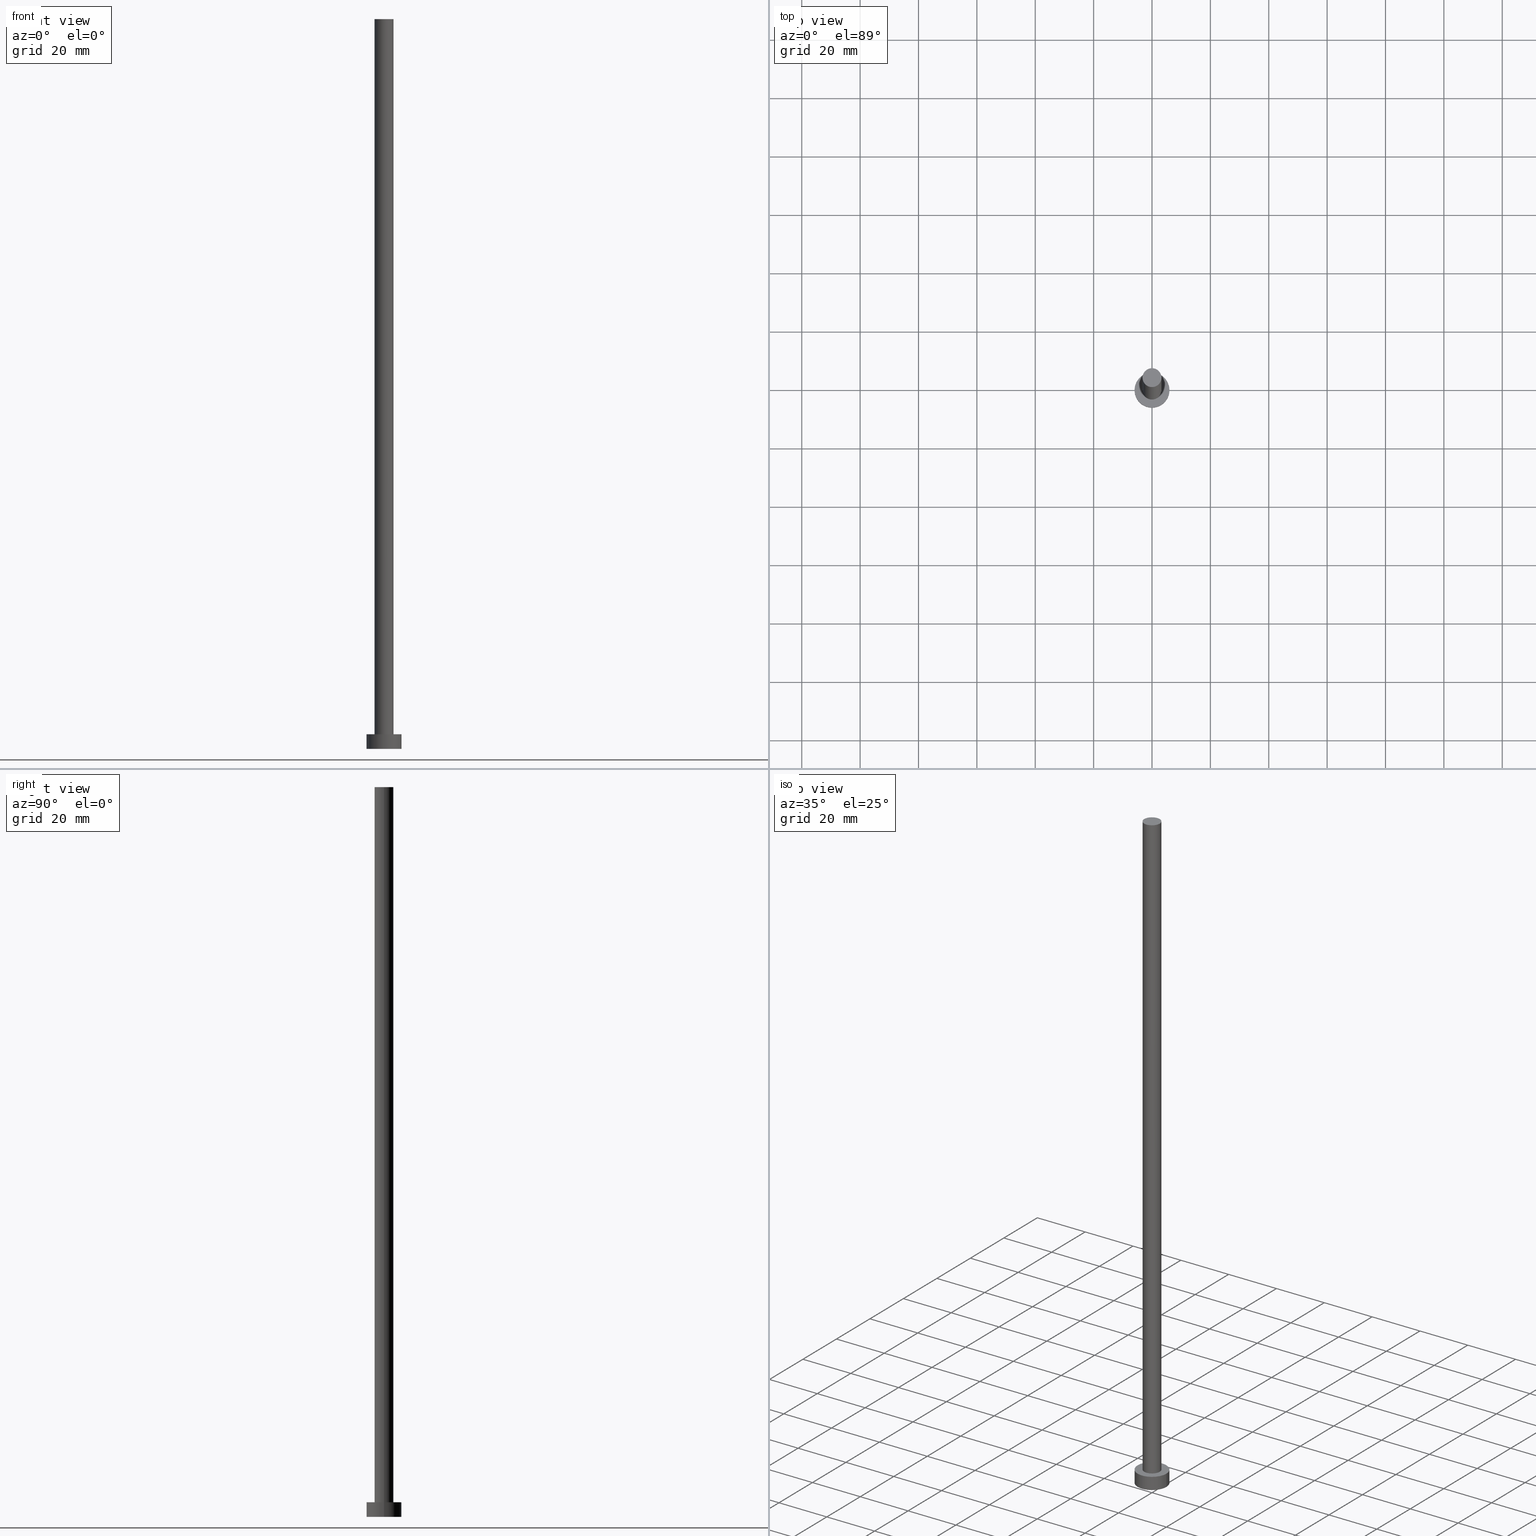
[diagram: canonical four-view strip — front | top / right | iso, engineering-drawing reading convention]
A machine part, canonical four-view strip (front | top / right | iso — engineering-drawing reading convention). The complete STEP part file that produces these views, byte-faithful:
ISO-10303-21;
HEADER;
FILE_DESCRIPTION (( 'STEP AP203' ),
    '1' );
FILE_NAME ('f6a0.STEP',
    '2023-02-12T12:07:57',
    ( '' ),
    ( '' ),
    'SwSTEP 2.0',
    'SolidWorks 2019',
    '' );
FILE_SCHEMA (( 'CONFIG_CONTROL_DESIGN' ));
ENDSEC;

DATA;
#1 = COORDINATED_UNIVERSAL_TIME_OFFSET ( 1, 0, .AHEAD. ) ;
#2 = CIRCLE ( 'NONE', #26, 3.250000000000000444 ) ;
#3 = PERSON_AND_ORGANIZATION ( #60, #21 ) ;
#4 = ORIENTED_EDGE ( 'NONE', *, *, #225, .F. ) ;
#5 = CARTESIAN_POINT ( 'NONE',  ( -6.000000000000000888, 0.000000000000000000, 0.000000000000000000 ) ) ;
#6 = ADVANCED_FACE ( 'NONE', ( #52, #169 ), #186, .T. ) ;
#7 = DIRECTION ( 'NONE',  ( 0.000000000000000000, 0.000000000000000000, 1.000000000000000000 ) ) ;
#8 = LINE ( 'NONE', #184, #203 ) ;
#9 = UNCERTAINTY_MEASURE_WITH_UNIT (LENGTH_MEASURE( 1.000000000000000082E-05 ), #51, 'distance_accuracy_value', 'NONE');
#10 = ORIENTED_EDGE ( 'NONE', *, *, #19, .T. ) ;
#11 = EDGE_CURVE ( 'NONE', #14, #111, #13, .T. ) ;
#12 = EDGE_LOOP ( 'NONE', ( #35, #159 ) ) ;
#13 = CIRCLE ( 'NONE', #81, 3.250000000000000444 ) ;
#14 = VERTEX_POINT ( 'NONE', #55 ) ;
#15 = DIRECTION ( 'NONE',  ( 1.000000000000000000, 0.000000000000000000, 0.000000000000000000 ) ) ;
#16 = CARTESIAN_POINT ( 'NONE',  ( 0.000000000000000000, 0.000000000000000000, 250.0000000000000000 ) ) ;
#17 = CIRCLE ( 'NONE', #250, 6.000000000000000888 ) ;
#18 = APPROVAL_STATUS ( 'not_yet_approved' ) ;
#19 = EDGE_CURVE ( 'NONE', #149, #124, #57, .T. ) ;
#20 = CARTESIAN_POINT ( 'NONE',  ( 0.000000000000000000, 0.000000000000000000, 5.000000000000000000 ) ) ;
#21 = ORGANIZATION ( 'NEUR�EN�', 'NEUR�EN�', '' ) ;
#22 = EDGE_CURVE ( 'NONE', #14, #124, #131, .T. ) ;
#23 = PRODUCT_DEFINITION_SHAPE ( 'NONE', 'NONE',  #179 ) ;
#24 = COORDINATED_UNIVERSAL_TIME_OFFSET ( 1, 0, .AHEAD. ) ;
#25 = EDGE_LOOP ( 'NONE', ( #229, #67, #92, #220 ) ) ;
#26 = AXIS2_PLACEMENT_3D ( 'NONE', #165, #7, #48 ) ;
#27 = AXIS2_PLACEMENT_3D ( 'NONE', #148, #188, #246 ) ;
#28 = VERTEX_POINT ( 'NONE', #86 ) ;
#29 = PERSON_AND_ORGANIZATION ( #60, #21 ) ;
#30 = DIRECTION ( 'NONE',  ( 1.000000000000000000, 0.000000000000000000, -0.000000000000000000 ) ) ;
#31 = DIRECTION ( 'NONE',  ( -0.000000000000000000, -0.000000000000000000, -1.000000000000000000 ) ) ;
#32 = CARTESIAN_POINT ( 'NONE',  ( -6.000000000000000888, 0.000000000000000000, 5.000000000000000000 ) ) ;
#33 = DESIGN_CONTEXT ( 'detailed design', #125, 'design' ) ;
#34 =( NAMED_UNIT ( * ) PLANE_ANGLE_UNIT ( ) SI_UNIT ( $, .RADIAN. ) );
#35 = ORIENTED_EDGE ( 'NONE', *, *, #11, .T. ) ;
#36 = DIRECTION ( 'NONE',  ( -0.000000000000000000, -0.000000000000000000, -1.000000000000000000 ) ) ;
#37 = AXIS2_PLACEMENT_3D ( 'NONE', #20, #58, #171 ) ;
#38 = AXIS2_PLACEMENT_3D ( 'NONE', #108, #253, #202 ) ;
#39 = DIRECTION ( 'NONE',  ( 1.000000000000000000, 0.000000000000000000, 0.000000000000000000 ) ) ;
#40 = DIRECTION ( 'NONE',  ( 0.000000000000000000, 0.000000000000000000, 1.000000000000000000 ) ) ;
#41 = CARTESIAN_POINT ( 'NONE',  ( 6.000000000000000888, 7.347880794884120722E-16, 5.000000000000000000 ) ) ;
#42 = PRODUCT_RELATED_PRODUCT_CATEGORY ( 'detail', '', ( #117 ) ) ;
#43 = AXIS2_PLACEMENT_3D ( 'NONE', #91, #126, #75 ) ;
#44 = DATE_AND_TIME ( #215, #98 ) ;
#45 = LOCAL_TIME ( 13, 7, 57.00000000000000000, #99 ) ;
#46 = VERTEX_POINT ( 'NONE', #32 ) ;
#47 = APPROVAL_PERSON_ORGANIZATION ( #29, #119, #245 ) ;
#48 = DIRECTION ( 'NONE',  ( 1.000000000000000000, 0.000000000000000000, 0.000000000000000000 ) ) ;
#49 = CALENDAR_DATE ( 2023, 12, 2 ) ;
#50 = FACE_OUTER_BOUND ( 'NONE', #25, .T. ) ;
#51 =( LENGTH_UNIT ( ) NAMED_UNIT ( * ) SI_UNIT ( .MILLI., .METRE. ) );
#52 = FACE_BOUND ( 'NONE', #207, .T. ) ;
#53 = CARTESIAN_POINT ( 'NONE',  ( 0.000000000000000000, 0.000000000000000000, 5.000000000000000000 ) ) ;
#54 = ORIENTED_EDGE ( 'NONE', *, *, #161, .T. ) ;
#55 = CARTESIAN_POINT ( 'NONE',  ( -3.250000000000000444, 0.000000000000000000, 250.0000000000000000 ) ) ;
#56 = DIRECTION ( 'NONE',  ( -1.000000000000000000, 0.000000000000000000, 0.000000000000000000 ) ) ;
#57 = CIRCLE ( 'NONE', #27, 3.250000000000000444 ) ;
#58 = DIRECTION ( 'NONE',  ( -0.000000000000000000, -0.000000000000000000, -1.000000000000000000 ) ) ;
#59 = CARTESIAN_POINT ( 'NONE',  ( 0.000000000000000000, 0.000000000000000000, 5.000000000000000000 ) ) ;
#60 = PERSON ( 'NEUR�EN�', 'NEUR�EN�', 'NEUR�EN�', ('NEUR�EN�'), ('NEUR�EN�'), ('NEUR�EN�') ) ;
#61 = EDGE_CURVE ( 'NONE', #46, #120, #227, .T. ) ;
#62 = AXIS2_PLACEMENT_3D ( 'NONE', #16, #192, #15 ) ;
#63 = PERSON_AND_ORGANIZATION ( #60, #21 ) ;
#64 = PERSON_AND_ORGANIZATION ( #60, #21 ) ;
#65 = EDGE_CURVE ( 'NONE', #46, #129, #221, .T. ) ;
#66 = PERSON_AND_ORGANIZATION_ROLE ( 'creator' ) ;
#67 = ORIENTED_EDGE ( 'NONE', *, *, #11, .F. ) ;
#68 = ORIENTED_EDGE ( 'NONE', *, *, #22, .F. ) ;
#69 = MANIFOLD_SOLID_BREP ( 'P�idat vysunut�m3', #155 ) ;
#70 = PERSON_AND_ORGANIZATION_ROLE ( 'design_supplier' ) ;
#71 =( NAMED_UNIT ( * ) SI_UNIT ( $, .STERADIAN. ) SOLID_ANGLE_UNIT ( ) );
#72 = APPROVAL_PERSON_ORGANIZATION ( #63, #82, #133 ) ;
#73 = ORIENTED_EDGE ( 'NONE', *, *, #144, .F. ) ;
#74 = EDGE_LOOP ( 'NONE', ( #73, #140, #10, #68 ) ) ;
#75 = DIRECTION ( 'NONE',  ( 1.000000000000000000, 0.000000000000000000, -0.000000000000000000 ) ) ;
#76 = DIRECTION ( 'NONE',  ( -0.000000000000000000, -0.000000000000000000, -1.000000000000000000 ) ) ;
#77 = LOCAL_TIME ( 13, 7, 57.00000000000000000, #1 ) ;
#78 = EDGE_LOOP ( 'NONE', ( #107, #198 ) ) ;
#79 = DIRECTION ( 'NONE',  ( 1.000000000000000000, 0.000000000000000000, -0.000000000000000000 ) ) ;
#80 = FACE_OUTER_BOUND ( 'NONE', #74, .T. ) ;
#81 = AXIS2_PLACEMENT_3D ( 'NONE', #231, #109, #248 ) ;
#82 = APPROVAL ( #18, 'NEUR�EN�' ) ;
#83 = EDGE_LOOP ( 'NONE', ( #197, #104, #54, #168 ) ) ;
#84 = CC_DESIGN_PERSON_AND_ORGANIZATION_ASSIGNMENT ( #3, #176, ( #179 ) ) ;
#85 = DATE_AND_TIME ( #240, #77 ) ;
#86 = CARTESIAN_POINT ( 'NONE',  ( 6.000000000000000888, 7.347880794884120722E-16, 0.000000000000000000 ) ) ;
#87 = CC_DESIGN_DATE_AND_TIME_ASSIGNMENT ( #44, #195, ( #141 ) ) ;
#88 = LOCAL_TIME ( 13, 7, 57.00000000000000000, #145 ) ;
#89 = CYLINDRICAL_SURFACE ( 'NONE', #101, 3.250000000000000444 ) ;
#90 = APPLICATION_PROTOCOL_DEFINITION ( 'international standard', 'config_control_design', 1994, #125 ) ;
#91 = CARTESIAN_POINT ( 'NONE',  ( 0.000000000000000000, 0.000000000000000000, 5.000000000000000000 ) ) ;
#92 = ORIENTED_EDGE ( 'NONE', *, *, #22, .T. ) ;
#93 = FACE_OUTER_BOUND ( 'NONE', #142, .T. ) ;
#94 = PLANE ( 'NONE',  #143 ) ;
#95 = DATE_AND_TIME ( #173, #45 ) ;
#96 = AXIS2_PLACEMENT_3D ( 'NONE', #190, #115, #56 ) ;
#97 = DIRECTION ( 'NONE',  ( -0.000000000000000000, -0.000000000000000000, -1.000000000000000000 ) ) ;
#98 = LOCAL_TIME ( 13, 7, 57.00000000000000000, #138 ) ;
#99 = COORDINATED_UNIVERSAL_TIME_OFFSET ( 1, 0, .AHEAD. ) ;
#100 = APPROVAL ( #158, 'NEUR�EN�' ) ;
#101 = AXIS2_PLACEMENT_3D ( 'NONE', #153, #234, #134 ) ;
#102 = AXIS2_PLACEMENT_3D ( 'NONE', #128, #183, #123 ) ;
#103 = DATE_TIME_ROLE ( 'creation_date' ) ;
#104 = ORIENTED_EDGE ( 'NONE', *, *, #211, .T. ) ;
#105 = CIRCLE ( 'NONE', #191, 6.000000000000000888 ) ;
#106 = APPROVAL_DATE_TIME ( #201, #119 ) ;
#107 = ORIENTED_EDGE ( 'NONE', *, *, #65, .T. ) ;
#108 = CARTESIAN_POINT ( 'NONE',  ( 0.000000000000000000, 0.000000000000000000, 5.000000000000000000 ) ) ;
#109 = DIRECTION ( 'NONE',  ( 0.000000000000000000, 0.000000000000000000, 1.000000000000000000 ) ) ;
#110 = AXIS2_PLACEMENT_3D ( 'NONE', #53, #31, #226 ) ;
#111 = VERTEX_POINT ( 'NONE', #152 ) ;
#112 = DIRECTION ( 'NONE',  ( 1.000000000000000000, 0.000000000000000000, 0.000000000000000000 ) ) ;
#113 = DIRECTION ( 'NONE',  ( 0.000000000000000000, 0.000000000000000000, 1.000000000000000000 ) ) ;
#114 = ADVANCED_FACE ( 'NONE', ( #232 ), #122, .T. ) ;
#115 = DIRECTION ( 'NONE',  ( -0.000000000000000000, -0.000000000000000000, -1.000000000000000000 ) ) ;
#116 = EDGE_CURVE ( 'NONE', #111, #149, #8, .T. ) ;
#117 = PRODUCT ( 'f6a0', 'f6a0', '', ( #163 ) ) ;
#118 = CC_DESIGN_APPROVAL ( #119, ( #179 ) ) ;
#119 = APPROVAL ( #228, 'NEUR�EN�' ) ;
#120 = VERTEX_POINT ( 'NONE', #5 ) ;
#121 = CC_DESIGN_PERSON_AND_ORGANIZATION_ASSIGNMENT ( #243, #137, ( #141 ) ) ;
#122 = PLANE ( 'NONE',  #216 ) ;
#123 = DIRECTION ( 'NONE',  ( 1.000000000000000000, 0.000000000000000000, 0.000000000000000000 ) ) ;
#124 = VERTEX_POINT ( 'NONE', #162 ) ;
#125 = APPLICATION_CONTEXT ( 'configuration controlled 3d designs of mechanical parts and assemblies' ) ;
#126 = DIRECTION ( 'NONE',  ( 0.000000000000000000, 0.000000000000000000, 1.000000000000000000 ) ) ;
#127 = CC_DESIGN_APPROVAL ( #100, ( #206 ) ) ;
#128 = CARTESIAN_POINT ( 'NONE',  ( 0.000000000000000000, 0.000000000000000000, 0.000000000000000000 ) ) ;
#129 = VERTEX_POINT ( 'NONE', #224 ) ;
#130 = ADVANCED_FACE ( 'NONE', ( #50 ), #89, .T. ) ;
#131 = LINE ( 'NONE', #251, #204 ) ;
#132 = CARTESIAN_POINT ( 'NONE',  ( 3.250000000000000444, 3.980102097228898231E-16, 5.000000000000000000 ) ) ;
#133 = APPROVAL_ROLE ( '' ) ;
#134 = DIRECTION ( 'NONE',  ( -1.000000000000000000, 0.000000000000000000, 0.000000000000000000 ) ) ;
#135 = APPROVAL_PERSON_ORGANIZATION ( #178, #100, #217 ) ;
#136 = CYLINDRICAL_SURFACE ( 'NONE', #37, 6.000000000000000888 ) ;
#137 = PERSON_AND_ORGANIZATION_ROLE ( 'classification_officer' ) ;
#138 = COORDINATED_UNIVERSAL_TIME_OFFSET ( 1, 0, .AHEAD. ) ;
#139 = ADVANCED_FACE ( 'NONE', ( #80 ), #189, .T. ) ;
#140 = ORIENTED_EDGE ( 'NONE', *, *, #116, .T. ) ;
#141 = SECURITY_CLASSIFICATION ( '', '', #219 ) ;
#142 = EDGE_LOOP ( 'NONE', ( #239, #194 ) ) ;
#143 = AXIS2_PLACEMENT_3D ( 'NONE', #172, #40, #79 ) ;
#144 = EDGE_CURVE ( 'NONE', #111, #14, #167, .T. ) ;
#145 = COORDINATED_UNIVERSAL_TIME_OFFSET ( 1, 0, .AHEAD. ) ;
#146 = DIRECTION ( 'NONE',  ( 0.000000000000000000, 0.000000000000000000, 1.000000000000000000 ) ) ;
#147 = CYLINDRICAL_SURFACE ( 'NONE', #110, 6.000000000000000888 ) ;
#148 = CARTESIAN_POINT ( 'NONE',  ( 0.000000000000000000, 0.000000000000000000, 5.000000000000000000 ) ) ;
#149 = VERTEX_POINT ( 'NONE', #132 ) ;
#150 = CC_DESIGN_PERSON_AND_ORGANIZATION_ASSIGNMENT ( #241, #66, ( #206 ) ) ;
#151 = CARTESIAN_POINT ( 'NONE',  ( -6.000000000000000888, 0.000000000000000000, 5.000000000000000000 ) ) ;
#152 = CARTESIAN_POINT ( 'NONE',  ( 3.250000000000000444, 3.980102097228898231E-16, 250.0000000000000000 ) ) ;
#153 = CARTESIAN_POINT ( 'NONE',  ( 0.000000000000000000, 0.000000000000000000, 250.0000000000000000 ) ) ;
#154 = FACE_OUTER_BOUND ( 'NONE', #249, .T. ) ;
#155 = CLOSED_SHELL ( 'NONE', ( #139, #252, #196, #6, #187, #130, #114 ) ) ;
#156 = APPLICATION_CONTEXT ( 'configuration controlled 3d designs of mechanical parts and assemblies' ) ;
#157 = DATE_AND_TIME ( #238, #213 ) ;
#158 = APPROVAL_STATUS ( 'not_yet_approved' ) ;
#159 = ORIENTED_EDGE ( 'NONE', *, *, #144, .T. ) ;
#160 = ADVANCED_BREP_SHAPE_REPRESENTATION ( 'f6a0', ( #69, #102 ), #242 ) ;
#161 = EDGE_CURVE ( 'NONE', #28, #120, #175, .T. ) ;
#162 = CARTESIAN_POINT ( 'NONE',  ( -3.250000000000000444, 0.000000000000000000, 5.000000000000000000 ) ) ;
#163 = MECHANICAL_CONTEXT ( 'NONE', #156, 'mechanical' ) ;
#164 = ORIENTED_EDGE ( 'NONE', *, *, #19, .F. ) ;
#165 = CARTESIAN_POINT ( 'NONE',  ( 0.000000000000000000, 0.000000000000000000, 5.000000000000000000 ) ) ;
#166 = ORIENTED_EDGE ( 'NONE', *, *, #211, .F. ) ;
#167 = CIRCLE ( 'NONE', #62, 3.250000000000000444 ) ;
#168 = ORIENTED_EDGE ( 'NONE', *, *, #61, .F. ) ;
#169 = FACE_OUTER_BOUND ( 'NONE', #78, .T. ) ;
#170 = CC_DESIGN_PERSON_AND_ORGANIZATION_ASSIGNMENT ( #64, #70, ( #206 ) ) ;
#171 = DIRECTION ( 'NONE',  ( -1.000000000000000000, 0.000000000000000000, 0.000000000000000000 ) ) ;
#172 = CARTESIAN_POINT ( 'NONE',  ( 0.000000000000000000, 0.000000000000000000, 0.000000000000000000 ) ) ;
#173 = CALENDAR_DATE ( 2023, 12, 2 ) ;
#174 = SHAPE_DEFINITION_REPRESENTATION ( #23, #160 ) ;
#175 = CIRCLE ( 'NONE', #244, 6.000000000000000888 ) ;
#176 = PERSON_AND_ORGANIZATION_ROLE ( 'creator' ) ;
#177 = EDGE_CURVE ( 'NONE', #129, #46, #105, .T. ) ;
#178 = PERSON_AND_ORGANIZATION ( #60, #21 ) ;
#179 = PRODUCT_DEFINITION ( 'NEZN�M�', '', #206, #33 ) ;
#180 = DIRECTION ( 'NONE',  ( -0.000000000000000000, -0.000000000000000000, -1.000000000000000000 ) ) ;
#181 = PERSON_AND_ORGANIZATION ( #60, #21 ) ;
#182 = CARTESIAN_POINT ( 'NONE',  ( 0.000000000000000000, 0.000000000000000000, 250.0000000000000000 ) ) ;
#183 = DIRECTION ( 'NONE',  ( 0.000000000000000000, 0.000000000000000000, 1.000000000000000000 ) ) ;
#184 = CARTESIAN_POINT ( 'NONE',  ( 3.250000000000000444, 3.980102097228898231E-16, 250.0000000000000000 ) ) ;
#185 = FACE_OUTER_BOUND ( 'NONE', #83, .T. ) ;
#186 = PLANE ( 'NONE',  #43 ) ;
#187 = ADVANCED_FACE ( 'NONE', ( #93 ), #94, .F. ) ;
#188 = DIRECTION ( 'NONE',  ( 0.000000000000000000, 0.000000000000000000, 1.000000000000000000 ) ) ;
#189 = CYLINDRICAL_SURFACE ( 'NONE', #96, 3.250000000000000444 ) ;
#190 = CARTESIAN_POINT ( 'NONE',  ( 0.000000000000000000, 0.000000000000000000, 250.0000000000000000 ) ) ;
#191 = AXIS2_PLACEMENT_3D ( 'NONE', #59, #233, #39 ) ;
#192 = DIRECTION ( 'NONE',  ( 0.000000000000000000, 0.000000000000000000, 1.000000000000000000 ) ) ;
#193 = CC_DESIGN_PERSON_AND_ORGANIZATION_ASSIGNMENT ( #181, #247, ( #117 ) ) ;
#194 = ORIENTED_EDGE ( 'NONE', *, *, #161, .F. ) ;
#195 = DATE_TIME_ROLE ( 'classification_date' ) ;
#196 = ADVANCED_FACE ( 'NONE', ( #154 ), #136, .T. ) ;
#197 = ORIENTED_EDGE ( 'NONE', *, *, #177, .F. ) ;
#198 = ORIENTED_EDGE ( 'NONE', *, *, #177, .T. ) ;
#199 = CC_DESIGN_SECURITY_CLASSIFICATION ( #141, ( #206 ) ) ;
#200 = ORIENTED_EDGE ( 'NONE', *, *, #65, .F. ) ;
#201 = DATE_AND_TIME ( #49, #88 ) ;
#202 = DIRECTION ( 'NONE',  ( 1.000000000000000000, 0.000000000000000000, 0.000000000000000000 ) ) ;
#203 = VECTOR ( 'NONE', #180, 1000.000000000000000 ) ;
#204 = VECTOR ( 'NONE', #76, 1000.000000000000000 ) ;
#205 = ORIENTED_EDGE ( 'NONE', *, *, #61, .T. ) ;
#206 = PRODUCT_DEFINITION_FORMATION_WITH_SPECIFIED_SOURCE ( 'LIBOVOLN�', '', #117, .NOT_KNOWN. ) ;
#207 = EDGE_LOOP ( 'NONE', ( #4, #164 ) ) ;
#208 = DIRECTION ( 'NONE',  ( 0.000000000000000000, 0.000000000000000000, 1.000000000000000000 ) ) ;
#209 = CARTESIAN_POINT ( 'NONE',  ( 0.000000000000000000, 0.000000000000000000, 0.000000000000000000 ) ) ;
#210 = LINE ( 'NONE', #41, #236 ) ;
#211 = EDGE_CURVE ( 'NONE', #129, #28, #210, .T. ) ;
#212 = APPROVAL_DATE_TIME ( #95, #82 ) ;
#213 = LOCAL_TIME ( 13, 7, 57.00000000000000000, #24 ) ;
#214 = EDGE_CURVE ( 'NONE', #120, #28, #17, .T. ) ;
#215 = CALENDAR_DATE ( 2023, 12, 2 ) ;
#216 = AXIS2_PLACEMENT_3D ( 'NONE', #182, #146, #30 ) ;
#217 = APPROVAL_ROLE ( '' ) ;
#218 = CC_DESIGN_DATE_AND_TIME_ASSIGNMENT ( #85, #103, ( #179 ) ) ;
#219 = SECURITY_CLASSIFICATION_LEVEL ( 'unclassified' ) ;
#220 = ORIENTED_EDGE ( 'NONE', *, *, #225, .T. ) ;
#221 = CIRCLE ( 'NONE', #38, 6.000000000000000888 ) ;
#222 = APPLICATION_PROTOCOL_DEFINITION ( 'international standard', 'config_control_design', 1994, #156 ) ;
#223 = ORIENTED_EDGE ( 'NONE', *, *, #214, .T. ) ;
#224 = CARTESIAN_POINT ( 'NONE',  ( 6.000000000000000888, 7.347880794884120722E-16, 5.000000000000000000 ) ) ;
#225 = EDGE_CURVE ( 'NONE', #124, #149, #2, .T. ) ;
#226 = DIRECTION ( 'NONE',  ( -1.000000000000000000, 0.000000000000000000, 0.000000000000000000 ) ) ;
#227 = LINE ( 'NONE', #151, #237 ) ;
#228 = APPROVAL_STATUS ( 'not_yet_approved' ) ;
#229 = ORIENTED_EDGE ( 'NONE', *, *, #116, .F. ) ;
#230 = CC_DESIGN_APPROVAL ( #82, ( #141 ) ) ;
#231 = CARTESIAN_POINT ( 'NONE',  ( 0.000000000000000000, 0.000000000000000000, 250.0000000000000000 ) ) ;
#232 = FACE_OUTER_BOUND ( 'NONE', #12, .T. ) ;
#233 = DIRECTION ( 'NONE',  ( 0.000000000000000000, 0.000000000000000000, 1.000000000000000000 ) ) ;
#234 = DIRECTION ( 'NONE',  ( -0.000000000000000000, -0.000000000000000000, -1.000000000000000000 ) ) ;
#235 = APPROVAL_DATE_TIME ( #157, #100 ) ;
#236 = VECTOR ( 'NONE', #97, 1000.000000000000000 ) ;
#237 = VECTOR ( 'NONE', #36, 1000.000000000000000 ) ;
#238 = CALENDAR_DATE ( 2023, 12, 2 ) ;
#239 = ORIENTED_EDGE ( 'NONE', *, *, #214, .F. ) ;
#240 = CALENDAR_DATE ( 2023, 12, 2 ) ;
#241 = PERSON_AND_ORGANIZATION ( #60, #21 ) ;
#242 =( GEOMETRIC_REPRESENTATION_CONTEXT ( 3 ) GLOBAL_UNCERTAINTY_ASSIGNED_CONTEXT ( ( #9 ) ) GLOBAL_UNIT_ASSIGNED_CONTEXT ( ( #51, #34, #71 ) ) REPRESENTATION_CONTEXT ( 'NONE', 'WORKASPACE' ) );
#243 = PERSON_AND_ORGANIZATION ( #60, #21 ) ;
#244 = AXIS2_PLACEMENT_3D ( 'NONE', #209, #208, #255 ) ;
#245 = APPROVAL_ROLE ( '' ) ;
#246 = DIRECTION ( 'NONE',  ( 1.000000000000000000, 0.000000000000000000, 0.000000000000000000 ) ) ;
#247 = PERSON_AND_ORGANIZATION_ROLE ( 'design_owner' ) ;
#248 = DIRECTION ( 'NONE',  ( 1.000000000000000000, 0.000000000000000000, 0.000000000000000000 ) ) ;
#249 = EDGE_LOOP ( 'NONE', ( #166, #200, #205, #223 ) ) ;
#250 = AXIS2_PLACEMENT_3D ( 'NONE', #254, #113, #112 ) ;
#251 = CARTESIAN_POINT ( 'NONE',  ( -3.250000000000000444, 0.000000000000000000, 250.0000000000000000 ) ) ;
#252 = ADVANCED_FACE ( 'NONE', ( #185 ), #147, .T. ) ;
#253 = DIRECTION ( 'NONE',  ( 0.000000000000000000, 0.000000000000000000, 1.000000000000000000 ) ) ;
#254 = CARTESIAN_POINT ( 'NONE',  ( 0.000000000000000000, 0.000000000000000000, 0.000000000000000000 ) ) ;
#255 = DIRECTION ( 'NONE',  ( 1.000000000000000000, 0.000000000000000000, 0.000000000000000000 ) ) ;
ENDSEC;
END-ISO-10303-21;
